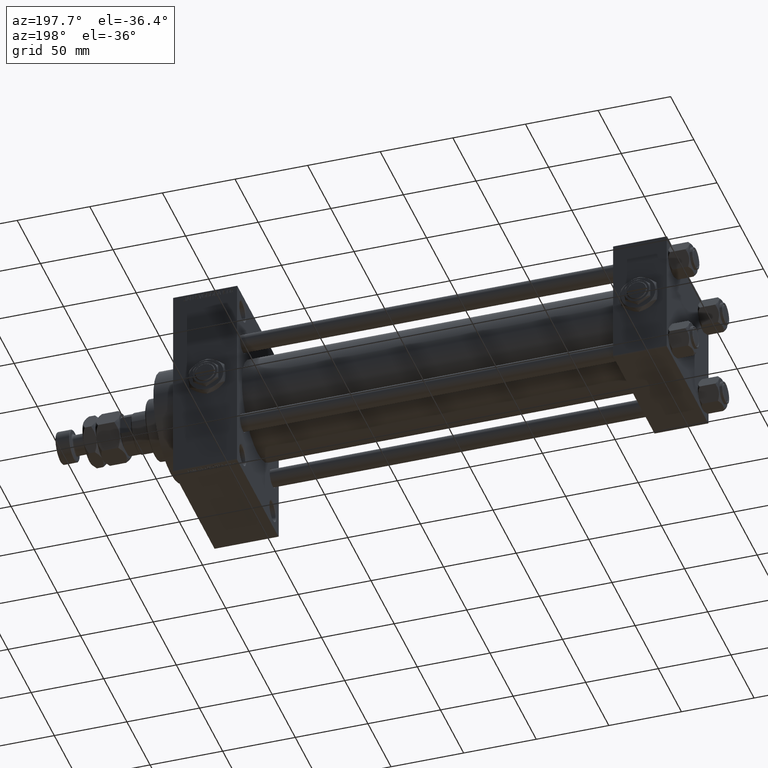
[diagram: clean part render]
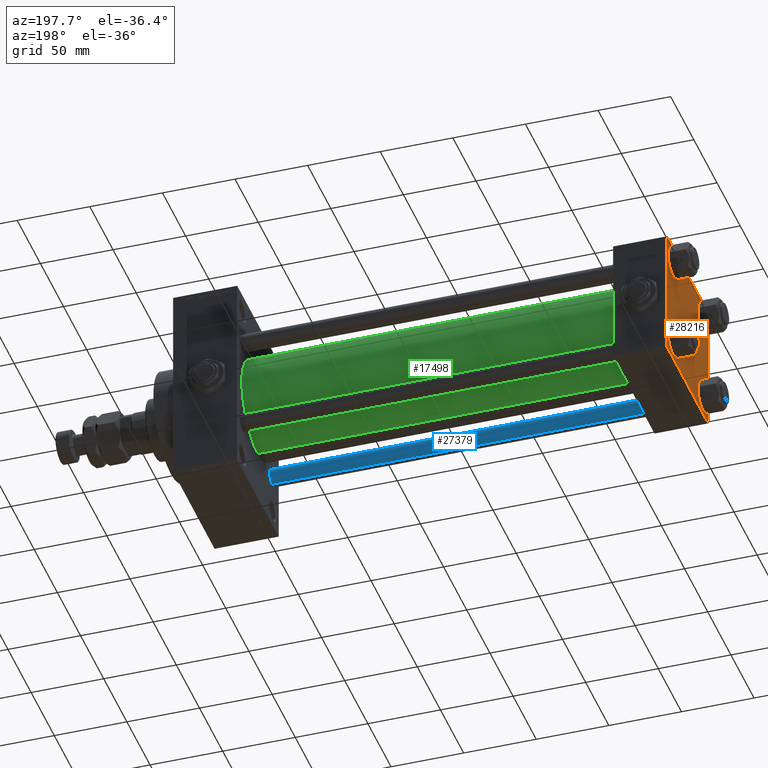
[diagram: same view with three faces highlighted in distinct colors, each labeled with its STEP entity id]
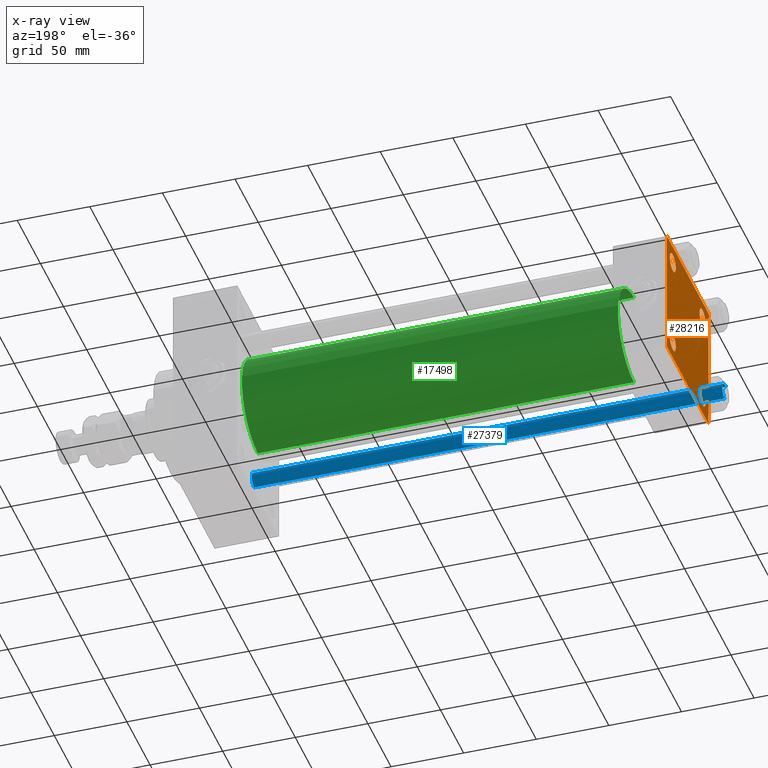
[diagram: x-ray of the same camera — body ghosted, the three highlighted faces saturated]
A machine part, auxiliary view with three faces highlighted in distinct colors.
The next image is the same camera in x-ray (body ghosted, the three faces saturated) — at least one of them is partly hidden behind the body in this view.
Their STEP definitions:

[orange] entity #28216 — the highlighted planar face has unit normal (-1, 0, 0).
#471 = EDGE_LOOP ( 'NONE', ( #7228, #45834 ) ) ;
#494 = AXIS2_PLACEMENT_3D ( 'NONE', #5035, #12279, #20773 ) ;
#510 = CARTESIAN_POINT ( 'NONE',  ( 0.000000000000000000, -44.49999999999995737, 45.00000000000000000 ) ) ;
#1203 = DIRECTION ( 'NONE',  ( 1.000000000000000000, -0.000000000000000000, 0.000000000000000000 ) ) ;
#1721 = CARTESIAN_POINT ( 'NONE',  ( 0.000000000000000000, 44.99999999999998579, -44.99999999999998579 ) ) ;
#1971 = DIRECTION ( 'NONE',  ( 0.000000000000000000, 0.000000000000000000, 1.000000000000000000 ) ) ;
#2225 = CARTESIAN_POINT ( 'NONE',  ( 0.000000000000000000, -32.14999999999997726, 32.15000000000001279 ) ) ;
#2687 = CARTESIAN_POINT ( 'NONE',  ( 0.000000000000000000, -32.14999999999997726, 38.65000000000003411 ) ) ;
#2854 = ORIENTED_EDGE ( 'NONE', *, *, #25557, .T. ) ;
#3411 = EDGE_CURVE ( 'NONE', #9434, #38697, #19236, .T. ) ;
#4020 = CIRCLE ( 'NONE', #24634, 6.499999999999977796 ) ;
#4492 = CARTESIAN_POINT ( 'NONE',  ( 0.000000000000000000, 32.14999999999999147, -32.15000000000000568 ) ) ;
#5035 = CARTESIAN_POINT ( 'NONE',  ( 0.000000000000000000, 32.14999999999999147, -32.15000000000000568 ) ) ;
#6112 = CARTESIAN_POINT ( 'NONE',  ( 0.000000000000000000, 32.14999999999999147, -38.64999999999998437 ) ) ;
#6198 = AXIS2_PLACEMENT_3D ( 'NONE', #2225, #1203, #1971 ) ;
#6868 = VERTEX_POINT ( 'NONE', #12369 ) ;
#6888 = DIRECTION ( 'NONE',  ( 1.000000000000000000, -0.000000000000000000, 0.000000000000000000 ) ) ;
#7042 = VECTOR ( 'NONE', #18508, 1000.000000000000114 ) ;
#7228 = ORIENTED_EDGE ( 'NONE', *, *, #19127, .T. ) ;
#7280 = EDGE_CURVE ( 'NONE', #44077, #21681, #34202, .T. ) ;
#7404 = ORIENTED_EDGE ( 'NONE', *, *, #28268, .T. ) ;
#7740 = VECTOR ( 'NONE', #22062, 1000.000000000000000 ) ;
#7837 = CIRCLE ( 'NONE', #25111, 6.499999999999977796 ) ;
#8268 = CARTESIAN_POINT ( 'NONE',  ( 0.000000000000000000, 44.74999999999999289, 44.74999999999999289 ) ) ;
#8356 = CARTESIAN_POINT ( 'NONE',  ( 0.000000000000000000, 0.000000000000000000, 0.000000000000000000 ) ) ;
#8492 = EDGE_LOOP ( 'NONE', ( #7404, #42789 ) ) ;
#8505 = DIRECTION ( 'NONE',  ( 1.000000000000000000, -0.000000000000000000, 0.000000000000000000 ) ) ;
#8621 = FACE_BOUND ( 'NONE', #20685, .T. ) ;
#8699 = DIRECTION ( 'NONE',  ( -0.000000000000000000, 0.7071067811865425767, 0.7071067811865524577 ) ) ;
#8788 = LINE ( 'NONE', #8268, #20690 ) ;
#8815 = CARTESIAN_POINT ( 'NONE',  ( 0.000000000000000000, 44.99999999999998579, 45.00000000000001421 ) ) ;
#9138 = VERTEX_POINT ( 'NONE', #14613 ) ;
#9434 = VERTEX_POINT ( 'NONE', #24749 ) ;
#9833 = AXIS2_PLACEMENT_3D ( 'NONE', #35908, #50853, #31264 ) ;
#10004 = CIRCLE ( 'NONE', #40418, 6.499999999999977796 ) ;
#10781 = ORIENTED_EDGE ( 'NONE', *, *, #41868, .T. ) ;
#11406 = EDGE_CURVE ( 'NONE', #28010, #22485, #47411, .T. ) ;
#12279 = DIRECTION ( 'NONE',  ( 1.000000000000000000, -0.000000000000000000, 0.000000000000000000 ) ) ;
#12369 = CARTESIAN_POINT ( 'NONE',  ( 0.000000000000000000, -45.00000000000000000, -44.49999999999995737 ) ) ;
#12388 = CARTESIAN_POINT ( 'NONE',  ( 0.000000000000000000, 32.14999999999999147, 32.15000000000000568 ) ) ;
#13461 = DIRECTION ( 'NONE',  ( 0.000000000000000000, -0.7071067811865474617, 0.7071067811865474617 ) ) ;
#14234 = LINE ( 'NONE', #28233, #36424 ) ;
#14613 = CARTESIAN_POINT ( 'NONE',  ( 0.000000000000000000, -44.49999999999995737, -45.00000000000000000 ) ) ;
#15225 = ORIENTED_EDGE ( 'NONE', *, *, #15607, .T. ) ;
#15607 = EDGE_CURVE ( 'NONE', #15869, #41761, #36385, .T. ) ;
#15853 = FACE_BOUND ( 'NONE', #8492, .T. ) ;
#15869 = VERTEX_POINT ( 'NONE', #31184 ) ;
#15961 = AXIS2_PLACEMENT_3D ( 'NONE', #35648, #20202, #20710 ) ;
#16115 = DIRECTION ( 'NONE',  ( -1.000000000000000000, 0.000000000000000000, -0.000000000000000000 ) ) ;
#16194 = CARTESIAN_POINT ( 'NONE',  ( 0.000000000000000000, 44.49999999999998579, -44.99999999999998579 ) ) ;
#16620 = DIRECTION ( 'NONE',  ( 0.000000000000000000, 0.000000000000000000, 1.000000000000000000 ) ) ;
#17050 = CARTESIAN_POINT ( 'NONE',  ( 0.000000000000000000, 32.14999999999999147, -25.65000000000002700 ) ) ;
#17173 = ORIENTED_EDGE ( 'NONE', *, *, #29915, .T. ) ;
#18508 = DIRECTION ( 'NONE',  ( -0.000000000000000000, -0.7071067811865474617, -0.7071067811865474617 ) ) ;
#18535 = CARTESIAN_POINT ( 'NONE',  ( 0.000000000000000000, 32.14999999999999147, 38.64999999999999147 ) ) ;
#18997 = VECTOR ( 'NONE', #40581, 1000.000000000000000 ) ;
#19127 = EDGE_CURVE ( 'NONE', #38697, #9434, #4020, .T. ) ;
#19236 = CIRCLE ( 'NONE', #15961, 6.499999999999977796 ) ;
#20202 = DIRECTION ( 'NONE',  ( 1.000000000000000000, -0.000000000000000000, 0.000000000000000000 ) ) ;
#20515 = LINE ( 'NONE', #44203, #18997 ) ;
#20685 = EDGE_LOOP ( 'NONE', ( #46079, #35171 ) ) ;
#20690 = VECTOR ( 'NONE', #24510, 1000.000000000000114 ) ;
#20710 = DIRECTION ( 'NONE',  ( 0.000000000000000000, 0.000000000000000000, 1.000000000000000000 ) ) ;
#20773 = DIRECTION ( 'NONE',  ( 0.000000000000000000, 0.000000000000000000, 1.000000000000000000 ) ) ;
#20842 = EDGE_CURVE ( 'NONE', #37820, #32745, #47698, .T. ) ;
#21001 = FACE_BOUND ( 'NONE', #47855, .T. ) ;
#21681 = VERTEX_POINT ( 'NONE', #2687 ) ;
#21884 = DIRECTION ( 'NONE',  ( 0.000000000000000000, 0.000000000000000000, 1.000000000000000000 ) ) ;
#22062 = DIRECTION ( 'NONE',  ( 0.000000000000000000, -1.000000000000000000, -1.541976423090495633E-16 ) ) ;
#22109 = CARTESIAN_POINT ( 'NONE',  ( 0.000000000000000000, 44.74999999999998579, -44.74999999999998579 ) ) ;
#22222 = AXIS2_PLACEMENT_3D ( 'NONE', #25745, #34498, #21884 ) ;
#22485 = VERTEX_POINT ( 'NONE', #17050 ) ;
#22612 = DIRECTION ( 'NONE',  ( 0.000000000000000000, 0.000000000000000000, 1.000000000000000000 ) ) ;
#23121 = ORIENTED_EDGE ( 'NONE', *, *, #26987, .F. ) ;
#23455 = EDGE_LOOP ( 'NONE', ( #15225, #10781, #48703, #17173, #23121, #32434, #48163, #27769 ) ) ;
#24510 = DIRECTION ( 'NONE',  ( 0.000000000000000000, 0.7071067811865474617, -0.7071067811865474617 ) ) ;
#24605 = DIRECTION ( 'NONE',  ( -0.000000000000000000, 0.000000000000000000, 1.000000000000000000 ) ) ;
#24634 = AXIS2_PLACEMENT_3D ( 'NONE', #12388, #8505, #27843 ) ;
#24749 = CARTESIAN_POINT ( 'NONE',  ( 0.000000000000000000, 32.14999999999999147, 25.65000000000002700 ) ) ;
#24784 = DIRECTION ( 'NONE',  ( 0.000000000000000000, 0.000000000000000000, -1.000000000000000000 ) ) ;
#24854 = VERTEX_POINT ( 'NONE', #37831 ) ;
#24855 = CARTESIAN_POINT ( 'NONE',  ( 0.000000000000000000, -32.14999999999997726, -38.64999999999999147 ) ) ;
#24921 = VERTEX_POINT ( 'NONE', #27496 ) ;
#25111 = AXIS2_PLACEMENT_3D ( 'NONE', #34723, #6888, #22612 ) ;
#25310 = VERTEX_POINT ( 'NONE', #510 ) ;
#25557 = EDGE_CURVE ( 'NONE', #21681, #44077, #40311, .T. ) ;
#25673 = VERTEX_POINT ( 'NONE', #16194 ) ;
#25745 = CARTESIAN_POINT ( 'NONE',  ( 0.000000000000000000, -32.14999999999997726, 32.15000000000001279 ) ) ;
#26987 = EDGE_CURVE ( 'NONE', #24854, #6868, #20515, .T. ) ;
#27305 = CARTESIAN_POINT ( 'NONE',  ( 0.000000000000000000, 44.99999999999998579, -44.49999999999995737 ) ) ;
#27496 = CARTESIAN_POINT ( 'NONE',  ( 0.000000000000000000, 44.49999999999998579, 45.00000000000001421 ) ) ;
#27631 = EDGE_CURVE ( 'NONE', #24921, #15869, #8788, .T. ) ;
#27769 = ORIENTED_EDGE ( 'NONE', *, *, #27631, .T. ) ;
#27843 = DIRECTION ( 'NONE',  ( 0.000000000000000000, 0.000000000000000000, 1.000000000000000000 ) ) ;
#28010 = VERTEX_POINT ( 'NONE', #6112 ) ;
#28216 = ADVANCED_FACE ( 'NONE', ( #21001, #8621, #15853, #40562, #43667 ), #36719, .T. ) ;
#28233 = CARTESIAN_POINT ( 'NONE',  ( 0.000000000000000000, 44.99999999999998579, 45.00000000000001421 ) ) ;
#28268 = EDGE_CURVE ( 'NONE', #22485, #28010, #10004, .T. ) ;
#28924 = LINE ( 'NONE', #48768, #36388 ) ;
#29915 = EDGE_CURVE ( 'NONE', #9138, #6868, #28924, .T. ) ;
#31184 = CARTESIAN_POINT ( 'NONE',  ( 0.000000000000000000, 44.99999999999998579, 44.50000000000001421 ) ) ;
#31264 = DIRECTION ( 'NONE',  ( 0.000000000000000000, 0.000000000000000000, 1.000000000000000000 ) ) ;
#32434 = ORIENTED_EDGE ( 'NONE', *, *, #45570, .T. ) ;
#32745 = VERTEX_POINT ( 'NONE', #36498 ) ;
#34202 = CIRCLE ( 'NONE', #6198, 6.500000000000019540 ) ;
#34498 = DIRECTION ( 'NONE',  ( 1.000000000000000000, -0.000000000000000000, 0.000000000000000000 ) ) ;
#34723 = CARTESIAN_POINT ( 'NONE',  ( 0.000000000000000000, -32.14999999999997726, -32.15000000000001279 ) ) ;
#35171 = ORIENTED_EDGE ( 'NONE', *, *, #20842, .T. ) ;
#35187 = VECTOR ( 'NONE', #24784, 1000.000000000000000 ) ;
#35329 = EDGE_CURVE ( 'NONE', #24921, #25310, #14234, .T. ) ;
#35648 = CARTESIAN_POINT ( 'NONE',  ( 0.000000000000000000, 32.14999999999999147, 32.15000000000000568 ) ) ;
#35908 = CARTESIAN_POINT ( 'NONE',  ( 0.000000000000000000, -32.14999999999997726, -32.15000000000001279 ) ) ;
#36017 = VECTOR ( 'NONE', #8699, 1000.000000000000114 ) ;
#36385 = LINE ( 'NONE', #8815, #35187 ) ;
#36388 = VECTOR ( 'NONE', #13461, 1000.000000000000114 ) ;
#36424 = VECTOR ( 'NONE', #40082, 1000.000000000000000 ) ;
#36454 = DIRECTION ( 'NONE',  ( 1.000000000000000000, -0.000000000000000000, 0.000000000000000000 ) ) ;
#36498 = CARTESIAN_POINT ( 'NONE',  ( 0.000000000000000000, -32.14999999999997726, -25.65000000000003411 ) ) ;
#36531 = CARTESIAN_POINT ( 'NONE',  ( -0.000000000000000000, -44.75000000000029843, 44.74999999999967315 ) ) ;
#36719 = PLANE ( 'NONE',  #37131 ) ;
#36796 = LINE ( 'NONE', #36531, #36017 ) ;
#37131 = AXIS2_PLACEMENT_3D ( 'NONE', #8356, #16115, #24605 ) ;
#37616 = EDGE_CURVE ( 'NONE', #25673, #9138, #46032, .T. ) ;
#37820 = VERTEX_POINT ( 'NONE', #24855 ) ;
#37831 = CARTESIAN_POINT ( 'NONE',  ( 0.000000000000000000, -45.00000000000000711, 44.49999999999997158 ) ) ;
#38697 = VERTEX_POINT ( 'NONE', #18535 ) ;
#40082 = DIRECTION ( 'NONE',  ( 0.000000000000000000, -1.000000000000000000, -1.541976423090495387E-16 ) ) ;
#40311 = CIRCLE ( 'NONE', #22222, 6.500000000000019540 ) ;
#40418 = AXIS2_PLACEMENT_3D ( 'NONE', #4492, #36454, #16620 ) ;
#40562 = FACE_BOUND ( 'NONE', #471, .T. ) ;
#40581 = DIRECTION ( 'NONE',  ( 0.000000000000000000, 7.709882115452476934E-17, -1.000000000000000000 ) ) ;
#41656 = CARTESIAN_POINT ( 'NONE',  ( 0.000000000000000000, -32.14999999999997726, 25.64999999999999147 ) ) ;
#41761 = VERTEX_POINT ( 'NONE', #27305 ) ;
#41868 = EDGE_CURVE ( 'NONE', #41761, #25673, #50196, .T. ) ;
#42789 = ORIENTED_EDGE ( 'NONE', *, *, #11406, .T. ) ;
#43667 = FACE_OUTER_BOUND ( 'NONE', #23455, .T. ) ;
#44077 = VERTEX_POINT ( 'NONE', #41656 ) ;
#44203 = CARTESIAN_POINT ( 'NONE',  ( 0.000000000000000000, -45.00000000000000711, 45.00000000000000000 ) ) ;
#45570 = EDGE_CURVE ( 'NONE', #24854, #25310, #36796, .T. ) ;
#45742 = ORIENTED_EDGE ( 'NONE', *, *, #7280, .T. ) ;
#45834 = ORIENTED_EDGE ( 'NONE', *, *, #3411, .T. ) ;
#46032 = LINE ( 'NONE', #1721, #7740 ) ;
#46079 = ORIENTED_EDGE ( 'NONE', *, *, #49079, .T. ) ;
#47411 = CIRCLE ( 'NONE', #494, 6.499999999999977796 ) ;
#47698 = CIRCLE ( 'NONE', #9833, 6.499999999999977796 ) ;
#47855 = EDGE_LOOP ( 'NONE', ( #2854, #45742 ) ) ;
#48163 = ORIENTED_EDGE ( 'NONE', *, *, #35329, .F. ) ;
#48703 = ORIENTED_EDGE ( 'NONE', *, *, #37616, .T. ) ;
#48768 = CARTESIAN_POINT ( 'NONE',  ( 0.000000000000000000, -44.74999999999998579, -44.74999999999998579 ) ) ;
#49079 = EDGE_CURVE ( 'NONE', #32745, #37820, #7837, .T. ) ;
#50196 = LINE ( 'NONE', #22109, #7042 ) ;
#50853 = DIRECTION ( 'NONE',  ( 1.000000000000000000, -0.000000000000000000, 0.000000000000000000 ) ) ;

[blue] entity #27379 — the highlighted cylindrical surface (edge-blend (fillet) strip) has radius 6 mm, axis along (-1, 0, 0).
#683 = EDGE_CURVE ( 'NONE', #6613, #21276, #1016, .T. ) ;
#1016 = CIRCLE ( 'NONE', #1833, 6.000000000000000888 ) ;
#1391 = VECTOR ( 'NONE', #10259, 1000.000000000000000 ) ;
#1833 = AXIS2_PLACEMENT_3D ( 'NONE', #11314, #19558, #27519 ) ;
#2703 = ORIENTED_EDGE ( 'NONE', *, *, #31247, .F. ) ;
#4383 = CARTESIAN_POINT ( 'NONE',  ( -6.000000000000000888, 0.000000000000000000, 324.5000000000001137 ) ) ;
#6551 = CARTESIAN_POINT ( 'NONE',  ( 6.000000000000000888, 7.347880794884120722E-16, 325.0000000000000000 ) ) ;
#6613 = VERTEX_POINT ( 'NONE', #8348 ) ;
#6972 = CIRCLE ( 'NONE', #48160, 6.000000000000000888 ) ;
#8348 = CARTESIAN_POINT ( 'NONE',  ( 6.000000000000000888, 7.347880794884120722E-16, 324.5000000000001137 ) ) ;
#9611 = FACE_OUTER_BOUND ( 'NONE', #34193, .T. ) ;
#10226 = ORIENTED_EDGE ( 'NONE', *, *, #39555, .T. ) ;
#10259 = DIRECTION ( 'NONE',  ( -0.000000000000000000, -0.000000000000000000, -1.000000000000000000 ) ) ;
#10290 = DIRECTION ( 'NONE',  ( -0.000000000000000000, -0.000000000000000000, 1.000000000000000000 ) ) ;
#10778 = CARTESIAN_POINT ( 'NONE',  ( -6.000000000000000888, 0.000000000000000000, 325.0000000000000000 ) ) ;
#10791 = AXIS2_PLACEMENT_3D ( 'NONE', #13741, #21466, #26337 ) ;
#11314 = CARTESIAN_POINT ( 'NONE',  ( 0.000000000000000000, 0.000000000000000000, 324.5000000000001137 ) ) ;
#13321 = EDGE_CURVE ( 'NONE', #21276, #15616, #45566, .T. ) ;
#13665 = CARTESIAN_POINT ( 'NONE',  ( 0.000000000000000000, 0.000000000000000000, 0.5000000000000004441 ) ) ;
#13741 = CARTESIAN_POINT ( 'NONE',  ( 0.000000000000000000, 0.000000000000000000, 325.0000000000000000 ) ) ;
#15616 = VERTEX_POINT ( 'NONE', #21186 ) ;
#18421 = LINE ( 'NONE', #6551, #19171 ) ;
#18904 = ORIENTED_EDGE ( 'NONE', *, *, #683, .T. ) ;
#19171 = VECTOR ( 'NONE', #34388, 1000.000000000000000 ) ;
#19558 = DIRECTION ( 'NONE',  ( 0.000000000000000000, 0.000000000000000000, -1.000000000000000000 ) ) ;
#21186 = CARTESIAN_POINT ( 'NONE',  ( -6.000000000000000888, 0.000000000000000000, 0.5000000000000004441 ) ) ;
#21276 = VERTEX_POINT ( 'NONE', #4383 ) ;
#21466 = DIRECTION ( 'NONE',  ( -0.000000000000000000, -0.000000000000000000, -1.000000000000000000 ) ) ;
#26337 = DIRECTION ( 'NONE',  ( -1.000000000000000000, 0.000000000000000000, 0.000000000000000000 ) ) ;
#27379 = ADVANCED_FACE ( 'NONE', ( #9611 ), #37177, .T. ) ;
#27519 = DIRECTION ( 'NONE',  ( 1.000000000000000000, 0.000000000000000000, 0.000000000000000000 ) ) ;
#31247 = EDGE_CURVE ( 'NONE', #6613, #42528, #18421, .T. ) ;
#34193 = EDGE_LOOP ( 'NONE', ( #2703, #18904, #48883, #10226 ) ) ;
#34388 = DIRECTION ( 'NONE',  ( -0.000000000000000000, -0.000000000000000000, -1.000000000000000000 ) ) ;
#37177 = CYLINDRICAL_SURFACE ( 'NONE', #10791, 6.000000000000000888 ) ;
#39555 = EDGE_CURVE ( 'NONE', #15616, #42528, #6972, .T. ) ;
#42528 = VERTEX_POINT ( 'NONE', #42531 ) ;
#42531 = CARTESIAN_POINT ( 'NONE',  ( 6.000000000000000888, 7.347880794884120722E-16, 0.5000000000000004441 ) ) ;
#45566 = LINE ( 'NONE', #10778, #1391 ) ;
#48160 = AXIS2_PLACEMENT_3D ( 'NONE', #13665, #10290, #49475 ) ;
#48883 = ORIENTED_EDGE ( 'NONE', *, *, #13321, .T. ) ;
#49475 = DIRECTION ( 'NONE',  ( 1.000000000000000000, 0.000000000000000000, 0.000000000000000000 ) ) ;

[green] entity #17498 — the highlighted cylindrical surface (partial cylindrical patch) has radius 34.5 mm, axis along (-1, -0, -0).
#1358 = CARTESIAN_POINT ( 'NONE',  ( 36.99999999999997868, -2.602085213965210642E-15, 0.000000000000000000 ) ) ;
#1717 = LINE ( 'NONE', #37778, #48047 ) ;
#1835 = AXIS2_PLACEMENT_3D ( 'NONE', #1358, #33553, #32799 ) ;
#6219 = EDGE_CURVE ( 'NONE', #40028, #27537, #6895, .T. ) ;
#6895 = LINE ( 'NONE', #18774, #16072 ) ;
#7253 = CARTESIAN_POINT ( 'NONE',  ( 36.99999999999997868, 1.622946243093158675E-15, -34.50000000000000000 ) ) ;
#11069 = CYLINDRICAL_SURFACE ( 'NONE', #20488, 34.50000000000000000 ) ;
#11988 = AXIS2_PLACEMENT_3D ( 'NONE', #22801, #39279, #15591 ) ;
#14399 = ORIENTED_EDGE ( 'NONE', *, *, #36728, .F. ) ;
#15591 = DIRECTION ( 'NONE',  ( 0.000000000000000000, 0.000000000000000000, -1.000000000000000000 ) ) ;
#16072 = VECTOR ( 'NONE', #34732, 1000.000000000000000 ) ;
#17498 = ADVANCED_FACE ( 'NONE', ( #46374 ), #11069, .T. ) ;
#18774 = CARTESIAN_POINT ( 'NONE',  ( 296.0000000000000000, 1.622946243093158675E-15, -34.50000000000000000 ) ) ;
#20237 = CIRCLE ( 'NONE', #11988, 34.50000000000000000 ) ;
#20488 = AXIS2_PLACEMENT_3D ( 'NONE', #50989, #39889, #47125 ) ;
#22801 = CARTESIAN_POINT ( 'NONE',  ( 296.0000000000000000, -2.602085213965210642E-15, 0.000000000000000000 ) ) ;
#24552 = CARTESIAN_POINT ( 'NONE',  ( 36.99999999999997868, -2.602085213965210642E-15, 34.50000000000000000 ) ) ;
#27537 = VERTEX_POINT ( 'NONE', #7253 ) ;
#27571 = EDGE_LOOP ( 'NONE', ( #29444, #31761, #30583, #14399 ) ) ;
#29444 = ORIENTED_EDGE ( 'NONE', *, *, #41382, .F. ) ;
#29930 = VERTEX_POINT ( 'NONE', #24552 ) ;
#30583 = ORIENTED_EDGE ( 'NONE', *, *, #34307, .T. ) ;
#31761 = ORIENTED_EDGE ( 'NONE', *, *, #6219, .T. ) ;
#32799 = DIRECTION ( 'NONE',  ( 0.000000000000000000, 0.000000000000000000, 1.000000000000000000 ) ) ;
#33553 = DIRECTION ( 'NONE',  ( 1.000000000000000000, -0.000000000000000000, 0.000000000000000000 ) ) ;
#34307 = EDGE_CURVE ( 'NONE', #27537, #29930, #47934, .T. ) ;
#34732 = DIRECTION ( 'NONE',  ( -1.000000000000000000, -0.000000000000000000, -0.000000000000000000 ) ) ;
#36728 = EDGE_CURVE ( 'NONE', #45142, #29930, #1717, .T. ) ;
#37778 = CARTESIAN_POINT ( 'NONE',  ( 296.0000000000000000, -2.602085213965210642E-15, 34.50000000000000000 ) ) ;
#39279 = DIRECTION ( 'NONE',  ( 1.000000000000000000, 0.000000000000000000, 0.000000000000000000 ) ) ;
#39889 = DIRECTION ( 'NONE',  ( -1.000000000000000000, -0.000000000000000000, -0.000000000000000000 ) ) ;
#40028 = VERTEX_POINT ( 'NONE', #45357 ) ;
#40879 = DIRECTION ( 'NONE',  ( -1.000000000000000000, -0.000000000000000000, -0.000000000000000000 ) ) ;
#41382 = EDGE_CURVE ( 'NONE', #40028, #45142, #20237, .T. ) ;
#45142 = VERTEX_POINT ( 'NONE', #46731 ) ;
#45357 = CARTESIAN_POINT ( 'NONE',  ( 296.0000000000000000, 1.622946243093158675E-15, -34.50000000000000000 ) ) ;
#46374 = FACE_OUTER_BOUND ( 'NONE', #27571, .T. ) ;
#46731 = CARTESIAN_POINT ( 'NONE',  ( 296.0000000000000000, -2.602085213965210642E-15, 34.50000000000000000 ) ) ;
#47125 = DIRECTION ( 'NONE',  ( 0.000000000000000000, 0.000000000000000000, 1.000000000000000000 ) ) ;
#47934 = CIRCLE ( 'NONE', #1835, 34.50000000000000000 ) ;
#48047 = VECTOR ( 'NONE', #40879, 1000.000000000000000 ) ;
#50989 = CARTESIAN_POINT ( 'NONE',  ( 296.0000000000000000, -2.602085213965210642E-15, 0.000000000000000000 ) ) ;